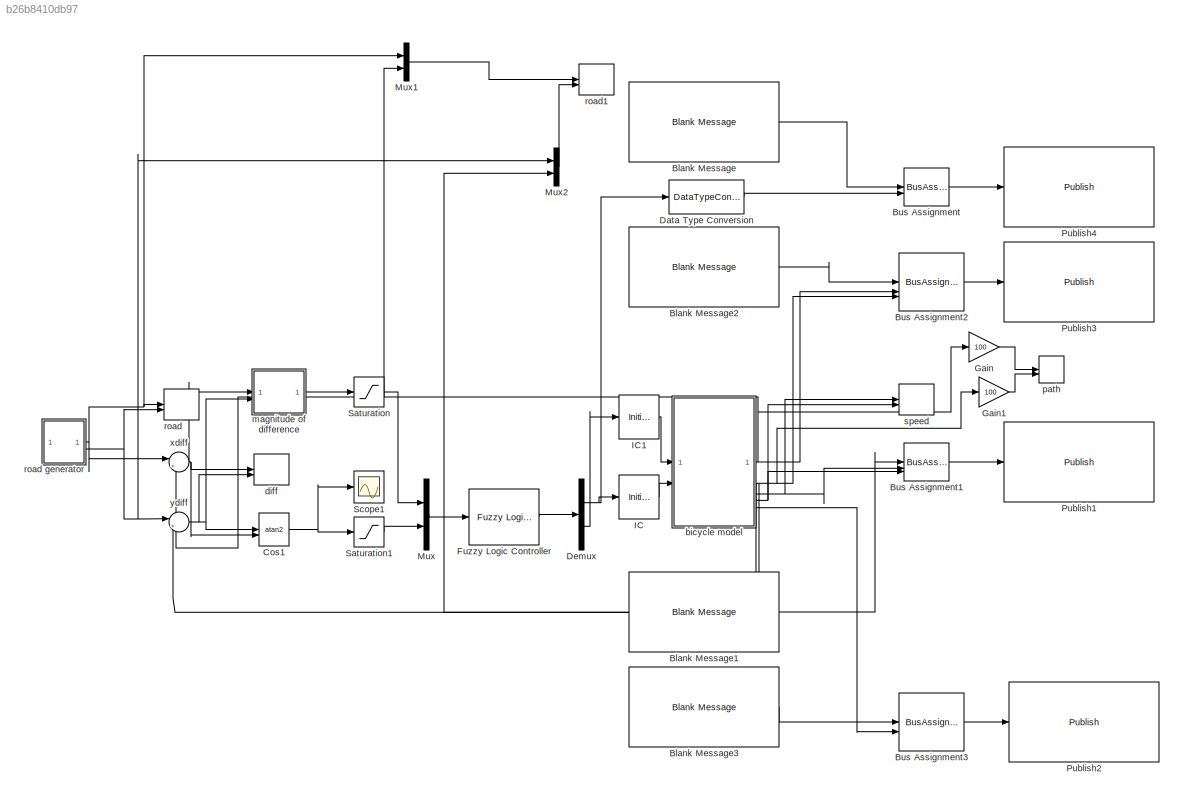
MODEL slx_b26b8410db97
KIND model
CONFIG AbsTol = auto
CONFIG EnableMultiTasking = off
CONFIG FixedStep = auto
CONFIG MaxStep = auto
CONFIG MinStep = auto
CONFIG RelTol = 1e-3
CONFIG SampleTimeConstraint = Unconstrained
CONFIG SolverName = ode3
CONFIG StartTime = 0.0
CONFIG StopTime = inf
BLOCK [Reference] Blank Message  REF=ros2lib/Blank Message  (lib defined in slx_3c1549211f48)
  SourceBlock = ros2lib/Blank Message
  SourceType = ROS2 Blank Message
BLOCK [Reference] Blank Message1  REF=ros2lib/Blank Message  (lib defined in slx_3c1549211f48)
  SourceBlock = ros2lib/Blank Message
  SourceType = ROS2 Blank Message
BLOCK [Reference] Blank Message2  REF=ros2lib/Blank Message  (lib defined in slx_3c1549211f48)
  SourceBlock = ros2lib/Blank Message
  SourceType = ROS2 Blank Message
BLOCK [Reference] Blank Message3  REF=ros2lib/Blank Message  (lib defined in slx_3c1549211f48)
  SourceBlock = ros2lib/Blank Message
  SourceType = ROS2 Blank Message
BLOCK [BusAssignment] Bus Assignment
  AssignedSignals = linear.x
BLOCK [BusAssignment] Bus Assignment1
  AssignedSignals = linear.x,linear.y
BLOCK [BusAssignment] Bus Assignment2
  AssignedSignals = position.x,position.y
BLOCK [BusAssignment] Bus Assignment3
  AssignedSignals = angular.z
BLOCK [Trigonometry] Cos1
  Operator = atan2
BLOCK [DataTypeConversion] Data Type Conversion
  RndMeth = Floor
  SaturateOnIntegerOverflow = off
BLOCK [Demux] Demux
  Outputs = 2
BLOCK [Reference] Fuzzy Logic Controller  REF=fuzblock/Fuzzy Logic   (lib defined in mdl_858b3b3e7478)
Controller
  SourceBlock = fuzblock/Fuzzy Logic \nController
  SourceType = Fuzzy Inference System
BLOCK [Gain] Gain
  Gain = 100
BLOCK [Gain] Gain1
  Gain = 100
BLOCK [InitialCondition] IC
  Value = 0
BLOCK [InitialCondition] IC1
  Value = 0
BLOCK [Mux] Mux
  DisplayOption = bar
  Inputs = 2
BLOCK [Mux] Mux1
  DisplayOption = bar
  Inputs = 2
BLOCK [Mux] Mux2
  DisplayOption = bar
  Inputs = 2
BLOCK [Reference] Publish1  REF=ros2lib/Publish  (lib defined in slx_3c1549211f48)
  SourceBlock = ros2lib/Publish
  SourceType = ROS2 Publish
BLOCK [Reference] Publish2  REF=ros2lib/Publish  (lib defined in slx_3c1549211f48)
  SourceBlock = ros2lib/Publish
  SourceType = ROS2 Publish
BLOCK [Reference] Publish3  REF=ros2lib/Publish  (lib defined in slx_3c1549211f48)
  SourceBlock = ros2lib/Publish
  SourceType = ROS2 Publish
BLOCK [Reference] Publish4  REF=ros2lib/Publish  (lib defined in slx_3c1549211f48)
  SourceBlock = ros2lib/Publish
  SourceType = ROS2 Publish
BLOCK [Saturate] Saturation
  LinearizeAsGain = off
  LowerLimit = 0
  UpperLimit = 100
BLOCK [Saturate] Saturation1
  LowerLimit = -1
  UpperLimit = 1
BLOCK [Scope] Scope1
  Floating = off
  NumInputPorts = 1
  ScopeSpecificationString = Simulink.scopes.TimeScopeBlockCfg('CurrentConfiguration', extmgr.ConfigurationSet(extmgr.Configuration('Core','General UI',true),extmgr.Configuration('Core','Source UI',true),extmgr.Configuration('Sources','WiredSimulink',true,'DataLoggingVariableName','ScopeData5'),extmgr.Configuration('Visuals','Time Domain',true,'SerializedDisplays',{struct('MinYLimReal','3.10574','MaxYLimReal','3.11205','YLabe...<+1451ch>
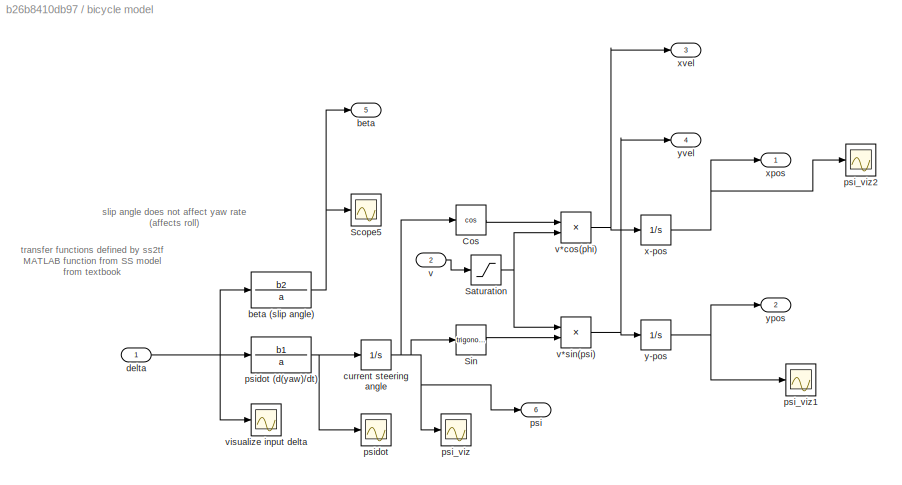
BLOCK [SubSystem] bicycle model
BLOCK [Trigonometry] bicycle model/Cos
  Operator = cos
BLOCK [Saturate] bicycle model/Saturation
  LowerLimit = -30
  UpperLimit = 30
BLOCK [Scope] bicycle model/Scope5
  Floating = off
  NumInputPorts = 1
  ScopeSpecificationString = Simulink.scopes.TimeScopeBlockCfg('CurrentConfiguration', extmgr.ConfigurationSet(extmgr.Configuration('Core','General UI',true),extmgr.Configuration('Core','Source UI',true),extmgr.Configuration('Sources','WiredSimulink',true,'DataLoggingVariableName','ScopeData3'),extmgr.Configuration('Visuals','Time Domain',true,'SerializedDisplays',{struct('MinYLimReal','-0.00258','MaxYLimReal','0.00029','YLab...<+1411ch>
BLOCK [Trigonometry] bicycle model/Sin
BLOCK [Outport] bicycle model/beta
  Port = 5
BLOCK [TransferFcn] bicycle model/beta (slip angle)
  ContinuousStateAttributes = 'beta'
  Denominator = a
  Numerator = b2
BLOCK [Integrator] bicycle model/current steering angle
BLOCK [Inport] bicycle model/delta
  OutDataTypeStr = double
BLOCK [Outport] bicycle model/psi
  Port = 6
BLOCK [Scope] bicycle model/psi_viz
  Floating = off
  NumInputPorts = 1
  ScopeSpecificationString = Simulink.scopes.TimeScopeBlockCfg('CurrentConfiguration', extmgr.ConfigurationSet(extmgr.Configuration('Core','General UI',true),extmgr.Configuration('Core','Source UI',true),extmgr.Configuration('Sources','WiredSimulink',true,'DataLoggingVariableName','ScopeData4'),extmgr.Configuration('Visuals','Time Domain',true,'SerializedDisplays',{struct('MinYLimReal','-0.24711','MaxYLimReal','0.02746','YLab...<+1445ch>
BLOCK [Scope] bicycle model/psi_viz1
  Floating = off
  NumInputPorts = 1
  ScopeSpecificationString = Simulink.scopes.TimeScopeBlockCfg('CurrentConfiguration', extmgr.ConfigurationSet(extmgr.Configuration('Core','General UI',true),extmgr.Configuration('Core','Source UI',true),extmgr.Configuration('Sources','WiredSimulink',true,'DataLoggingVariableName','ScopeData3'),extmgr.Configuration('Visuals','Time Domain',true,'SerializedDisplays',{struct('MinYLimReal','-98.19108','MaxYLimReal','10.91012','YL...<+1434ch>
BLOCK [Scope] bicycle model/psi_viz2
  Floating = off
  NumInputPorts = 1
  ScopeSpecificationString = Simulink.scopes.TimeScopeBlockCfg('CurrentConfiguration', extmgr.ConfigurationSet(extmgr.Configuration('Core','General UI',true),extmgr.Configuration('Core','Source UI',true),extmgr.Configuration('Sources','WiredSimulink',true,'DataLoggingVariableName','ScopeData4'),extmgr.Configuration('Visuals','Time Domain',true,'SerializedDisplays',{struct('MinYLimReal','-140.49007','MaxYLimReal','1264.41063',...<+1446ch>
BLOCK [Scope] bicycle model/psidot
  Floating = off
  NumInputPorts = 1
  ScopeSpecificationString = Simulink.scopes.TimeScopeBlockCfg('CurrentConfiguration', extmgr.ConfigurationSet(extmgr.Configuration('Core','General UI',true),extmgr.Configuration('Core','Source UI',true),extmgr.Configuration('Sources','WiredSimulink',true,'DataLoggingVariableName','ScopeData1'),extmgr.Configuration('Visuals','Time Domain',true,'SerializedDisplays',{struct('MinYLimReal','-0.00496','MaxYLimReal','0.00055','YLab...<+1441ch>
BLOCK [TransferFcn] bicycle model/psidot (d(yaw)//dt)
  ContinuousStateAttributes = 'psidot'
  Denominator = a
  Numerator = b1
  ParameterTunability = Optimized
BLOCK [Inport] bicycle model/v
  Port = 2
BLOCK [Product] bicycle model/v*cos(phi)
BLOCK [Product] bicycle model/v*sin(psi)
BLOCK [Scope] bicycle model/visualize input delta
  Floating = off
  NumInputPorts = 1
  ScopeSpecificationString = Simulink.scopes.TimeScopeBlockCfg('CurrentConfiguration', extmgr.ConfigurationSet(extmgr.Configuration('Core','General UI',true),extmgr.Configuration('Core','Source UI',true),extmgr.Configuration('Sources','WiredSimulink',true,'DataLoggingVariableName','ScopeData2'),extmgr.Configuration('Visuals','Time Domain',true,'SerializedDisplays',{struct('MinYLimReal','-0.5625','MaxYLimReal','0.0625','YLabel...<+1422ch>
BLOCK [Integrator] bicycle model/x-pos
BLOCK [Outport] bicycle model/xpos
BLOCK [Outport] bicycle model/xvel
  Port = 3
BLOCK [Integrator] bicycle model/y-pos
BLOCK [Outport] bicycle model/ypos
  Port = 2
BLOCK [Outport] bicycle model/yvel
  Port = 4
BLOCK [Record] diff
  CompatibilityTag = XY
  FileSettingsInternal = {"entries":[{"content":{"excelSettings":{"content":{},"type":"Streamout.ExcelSettings"}},"type":"Streamout.FileSettingStorage","uuid":""}],"packageUris":["http:\/\/schema.mathworks.com\/mf0\/streamout_blocks\/R2020a"],"version":"1.0"}  <repeated x5 — deduplicated; at blocks: diff, path, road, road1, speed>
  Layout = [1 1]
  SignalsInternal = {"entries":[{"content":{"signals":[{"content":{"blockPath":[],"dimensions":[1],"domain":"","lineColor":"#edb120","plots":[1],"port":1,"sid":[""],"signalID":61,"signalName":"xdiff"},"type":"RecordBlkView.Signal","uuid":""},{"content":{"blockPath":[],"dimensions":[1],"domain":"","lineColor":"#7e2f8e","plots":[1],"port":2,"sid":[""],"signalID":65,"signalName":"ydiff"},"type":"RecordBlkView.Signal","u...<+154ch>
  VisualizationBindings = {"xyplotplugin":{"info":[{"series":[{"bindingParametersList":[{"parameter":"X-Axis","signalID":61,"signalName":"xdiff"},{"parameter":"Y-Axis","signalID":65,"signalName":"ydiff"}],"seriesID":2994}],"subplotID":1}]}}
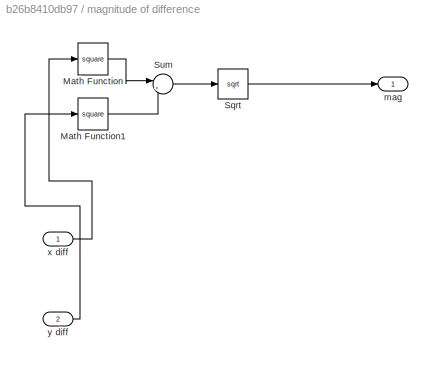
BLOCK [SubSystem] magnitude of difference
BLOCK [Math] magnitude of difference/Math Function
  Operator = square
BLOCK [Math] magnitude of difference/Math Function1
  Operator = square
BLOCK [Sqrt] magnitude of difference/Sqrt
BLOCK [Sum] magnitude of difference/Sum
  Inputs = |++
BLOCK [Outport] magnitude of difference/mag
BLOCK [Inport] magnitude of difference/x diff
BLOCK [Inport] magnitude of difference/y diff
  Port = 2
BLOCK [Record] path
  CompatibilityTag = XY
  Layout = [1 1]
  SignalsInternal = {"entries":[{"content":{"signals":[{"content":{"blockPath":[],"dimensions":[1],"domain":"","lineColor":"#77ac30","plots":[1],"port":1,"sid":[""],"signalID":69,"signalName":"Gain"},"type":"RecordBlkView.Signal","uuid":""},{"content":{"blockPath":[],"dimensions":[1],"domain":"","lineColor":"#4dbeee","plots":[1],"port":2,"sid":[""],"signalID":73,"signalName":"Gain1"},"type":"RecordBlkView.Signal","uu...<+153ch>
  VisualizationBindings = {"xyplotplugin":{"info":[{"series":[{"bindingParametersList":[{"parameter":"X-Axis","signalID":69,"signalName":"Gain"},{"parameter":"Y-Axis","signalID":73,"signalName":"Gain1"}],"seriesID":32254}],"subplotID":1}]}}
BLOCK [Record] road
  CompatibilityTag = XY
  Layout = [1 1]
  SignalsInternal = {"entries":[{"content":{"signals":[{"content":{"blockPath":[],"dimensions":[1],"domain":"","lineColor":"#a2142f","plots":[1],"port":1,"sid":[""],"signalID":77,"signalName":"road generator:1"},"type":"RecordBlkView.Signal","uuid":""},{"content":{"blockPath":[],"dimensions":[1],"domain":"","lineColor":"#139fff","plots":[1],"port":2,"sid":[""],"signalID":81,"signalName":"road generator:2"},"type":"Re...<+176ch>
  VisualizationBindings = {"xyplotplugin":{"info":[{"series":[{"bindingParametersList":[{"parameter":"X-Axis","signalID":77,"signalName":"road generator:1"},{"parameter":"Y-Axis","signalID":81,"signalName":"road generator:2"}],"seriesID":59637}],"subplotID":1}]}}
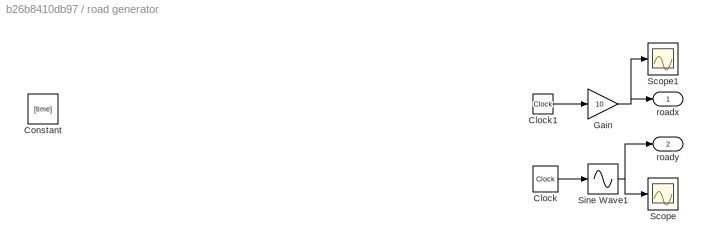
BLOCK [SubSystem] road generator
BLOCK [Clock] road generator/Clock
  Decimation = 1
BLOCK [Clock] road generator/Clock1
  Decimation = 1
BLOCK [Constant] road generator/Constant
  Value = [time]
BLOCK [Gain] road generator/Gain
  Gain = 10
BLOCK [Scope] road generator/Scope
  Floating = off
  NumInputPorts = 1
  ScopeSpecificationString = Simulink.scopes.TimeScopeBlockCfg('CurrentConfiguration', extmgr.ConfigurationSet(extmgr.Configuration('Core','General UI',true),extmgr.Configuration('Core','Source UI',true),extmgr.Configuration('Sources','WiredSimulink',true,'DataLoggingVariableName','ScopeData1'),extmgr.Configuration('Visuals','Time Domain',true,'SerializedDisplays',{struct('MinYLimReal','-12.49997','MaxYLimReal','12.49999','YL...<+1464ch>
BLOCK [Scope] road generator/Scope1
  Floating = off
  NumInputPorts = 1
  ScopeSpecificationString = Simulink.scopes.TimeScopeBlockCfg('CurrentConfiguration', extmgr.ConfigurationSet(extmgr.Configuration('Core','General UI',true),extmgr.Configuration('Core','Source UI',true),extmgr.Configuration('Sources','WiredSimulink',true,'DataLoggingVariableName','ScopeData2'),extmgr.Configuration('Visuals','Time Domain',true,'SerializedDisplays',{struct('MinYLimReal','-125.00000','MaxYLimReal','1125.00000',...<+1445ch>
BLOCK [Sin] road generator/Sine Wave1
  Amplitude = 10
  Frequency = 0.05
  Phase = 1
  SampleTime = 0
  TimeSource = Use external signal
BLOCK [Outport] road generator/roadx
BLOCK [Outport] road generator/roady
  Port = 2
BLOCK [Record] road1
  CompatibilityTag = XY
  Layout = [1 1]
  SignalsInternal = {"entries":[{"content":{"signals":[{"content":{"blockPath":[],"dimensions":[2],"domain":"","hasChildren":true,"lineColor":"#a2142f","port":1,"sid":[""],"signalID":85,"signalName":"Mux1"},"type":"RecordBlkView.Signal","uuid":""},{"content":{"blockPath":[],"channel":[1],"dimensions":[2],"domain":"","lineColor":"#139fff","parentID":85,"plots":[1],"port":1,"sid":[""],"signalID":86,"signalName":"Mux1"}...<+1024ch>
  VisualizationBindings = {"xyplotplugin":{"info":[{"series":[{"bindingParametersList":[{"parameter":"X-Axis","signalID":103,"signalName":"Mux1(2)"},{"parameter":"Y-Axis","signalID":91,"signalName":"Mux2(1)"}],"seriesID":52058},{"bindingParametersList":[{"parameter":"Y-Axis","signalID":104,"signalName":"Mux2(2)"},{"parameter":"X-Axis","signalID":86,"signalName":"Mux1(1)"}],"seriesID":60537}],"subplotID":1}]}}
BLOCK [Record] speed
  CompatibilityTag = XY
  Layout = [1 1]
  SignalsInternal = {"entries":[{"content":{"signals":[{"content":{"blockPath":[],"dimensions":[1],"domain":"","lineColor":"#ff6929","plots":[1],"port":1,"sid":[""],"signalID":95,"signalName":"bicycle model:3"},"type":"RecordBlkView.Signal","uuid":""},{"content":{"blockPath":[],"dimensions":[1],"domain":"","lineColor":"#b746ff","plots":[1],"port":2,"sid":[""],"signalID":99,"signalName":"bicycle model:4"},"type":"Reco...<+174ch>
  VisualizationBindings = {"xyplotplugin":{"info":[{"series":[{"bindingParametersList":[{"parameter":"X-Axis","signalID":95,"signalName":"bicycle model:3"},{"parameter":"Y-Axis","signalID":99,"signalName":"bicycle model:4"}],"seriesID":38694}],"subplotID":1}]}}
BLOCK [Sum] xdiff
  Inputs = |+-
BLOCK [Sum] ydiff
  Inputs = |+-
ANNOTATION bicycle model: slip angle does not affect yaw rate (affects roll)
ANNOTATION bicycle model: transfer functions defined by ss2tf MATLAB function from SS model from textbook
LINE Blank Message1:1 -> Bus Assignment1:1
LINE Blank Message2:1 -> Bus Assignment2:1
LINE Blank Message3:1 -> Bus Assignment3:1
LINE Blank Message:1 -> Bus Assignment:1
LINE Bus Assignment1:1 -> Publish1:1
LINE Bus Assignment2:1 -> Publish3:1
LINE Bus Assignment3:1 -> Publish2:1
LINE Bus Assignment:1 -> Publish4:1
NET Cos1:1 -> Saturation1:1, Scope1:1
LINE Data Type Conversion:1 -> Bus Assignment:2
NET Demux:1 -> Data Type Conversion:1, IC:1
LINE Demux:2 -> IC1:1
LINE Fuzzy Logic Controller:1 -> Demux:1
LINE Gain1:1 -> path:2
LINE Gain:1 -> path:1
LINE IC1:1 -> bicycle model:1
LINE IC:1 -> bicycle model:2
LINE Mux1:1 -> road1:1
LINE Mux2:1 -> road1:2
LINE Mux:1 -> Fuzzy Logic Controller:1
LINE Saturation1:1 -> Mux:2
LINE Saturation:1 -> Mux:1
LINE bicycle model/Cos:1 -> bicycle model/v*cos(phi):1
NET bicycle model/Saturation:1 -> bicycle model/v*cos(phi):2, bicycle model/v*sin(psi):1
LINE bicycle model/Sin:1 -> bicycle model/v*sin(psi):2
NET bicycle model/beta (slip angle):1 -> bicycle model/Scope5:1, bicycle model/beta:1
NET bicycle model/current steering angle:1 -> bicycle model/Cos:1, bicycle model/Sin:1, bicycle model/psi:1, bicycle model/psi_viz:1
NET bicycle model/delta:1 -> bicycle model/beta (slip angle):1, bicycle model/psidot (d(yaw)//dt):1, bicycle model/visualize input delta:1
NET bicycle model/psidot (d(yaw)//dt):1 -> bicycle model/current steering angle:1, bicycle model/psidot:1
NET bicycle model/v*cos(phi):1 -> bicycle model/x-pos:1, bicycle model/xvel:1
NET bicycle model/v*sin(psi):1 -> bicycle model/y-pos:1, bicycle model/yvel:1
LINE bicycle model/v:1 -> bicycle model/Saturation:1
NET bicycle model/x-pos:1 -> bicycle model/psi_viz2:1, bicycle model/xpos:1
NET bicycle model/y-pos:1 -> bicycle model/psi_viz1:1, bicycle model/ypos:1
NET bicycle model:1 -> Bus Assignment2:2, Gain:1, Mux1:2, xdiff:2
NET bicycle model:2 -> Bus Assignment2:3, Gain1:1, Mux2:2, ydiff:2
NET bicycle model:3 -> Bus Assignment1:2, speed:1
NET bicycle model:4 -> Bus Assignment1:3, speed:2
LINE bicycle model:6 -> Bus Assignment3:2
LINE magnitude of difference/Math Function1:1 -> magnitude of difference/Sum:2
LINE magnitude of difference/Math Function:1 -> magnitude of difference/Sum:1
LINE magnitude of difference/Sqrt:1 -> magnitude of difference/mag:1
LINE magnitude of difference/Sum:1 -> magnitude of difference/Sqrt:1
LINE magnitude of difference/x diff:1 -> magnitude of difference/Math Function:1
LINE magnitude of difference/y diff:1 -> magnitude of difference/Math Function1:1
LINE magnitude of difference:1 -> Saturation:1
LINE road generator/Clock1:1 -> road generator/Gain:1
LINE road generator/Clock:1 -> road generator/Sine Wave1:1
NET road generator/Gain:1 -> road generator/Scope1:1, road generator/roadx:1
NET road generator/Sine Wave1:1 -> road generator/Scope:1, road generator/roady:1
NET road generator:1 -> Mux1:1, road:1, xdiff:1
NET road generator:2 -> Mux2:1, road:2, ydiff:1
NET xdiff:1 -> Cos1:2, diff:1, magnitude of difference:1
NET ydiff:1 -> Cos1:1, diff:2, magnitude of difference:2
note: NET lines group one-source signal fan-out (src -> all destinations, sorted); 1:1 wires keep LINE
